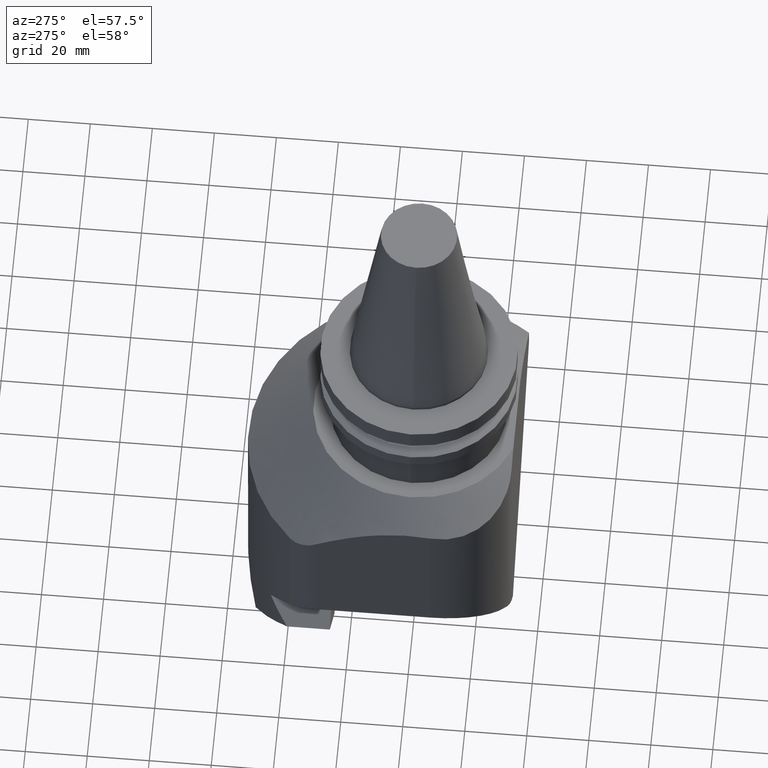
[diagram: clean part render]
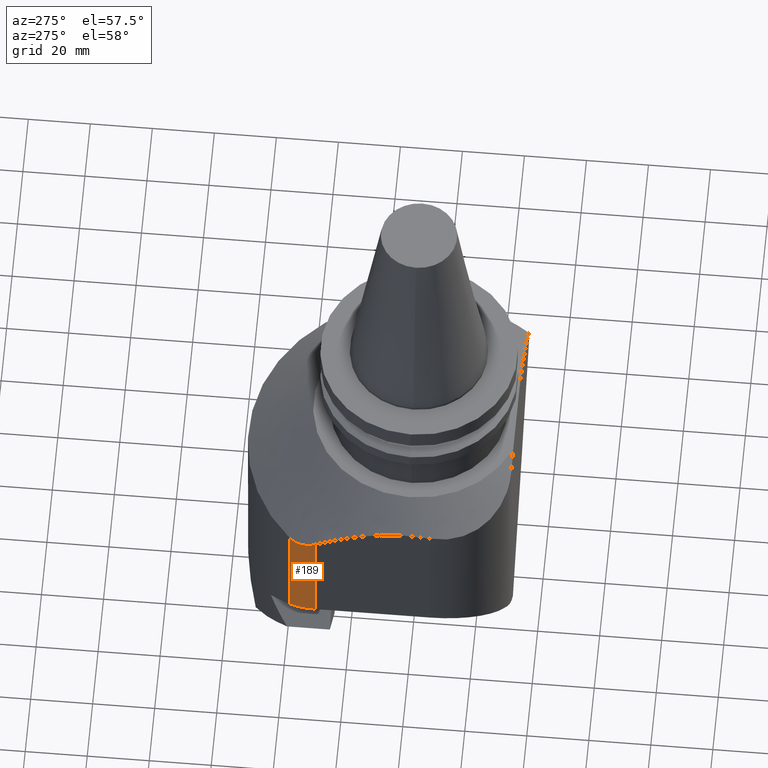
[diagram: same view with one face highlighted and labeled with its STEP entity id]
A machine part, auxiliary view. The second image highlights one B-rep face of the part: STEP entity #189.
In plain terms, the highlighted cylindrical surface (partial cylindrical patch) has radius 12 mm, axis along (-0, 0, 1).
Its self-contained STEP definition (entity closure, byte-faithful):
#189=ADVANCED_FACE('Unnamed[1]',(#447),#448,.T.);
#222=EDGE_CURVE('Unnamed[1]',#493,#344,#494,.T.);
#276=EDGE_CURVE('Unnamed[1]',#464,#376,#565,.T.);
#297=EDGE_CURVE('Unnamed[1]',#493,#464,#592,.T.);
#299=EDGE_CURVE('Unnamed[1]',#344,#376,#594,.T.);
#344=VERTEX_POINT('',#644);
#376=VERTEX_POINT('',#713);
#447=FACE_OUTER_BOUND('',#832,.T.);
#448=CYLINDRICAL_SURFACE('',#833,12.0);
#464=VERTEX_POINT('',#864);
#493=VERTEX_POINT('',#902);
#494=LINE('',#903,#904);
#565=LINE('',#1012,#1013);
#592=ELLIPSE('',#1052,16.9705627484773,12.0);
#594=B_SPLINE_CURVE_WITH_KNOTS('',3,(#1055,#1056,#1057,#1058,#1059,#1060,#1061,#1062,#1063,#1064,#1065,#1066,#1067,#1068,#1069,#1070,#1071,#1072),.UNSPECIFIED.,.F.,.F.,(4,2,2,2,2,2,2,2,4),(36.2557716590916,37.5446252428977,38.8334788267038,40.12233241051,41.4111859943161,42.7000395781222,44.2429399208327,45.7858402635432,47.3287406062536),.UNSPECIFIED.);
#644=CARTESIAN_POINT('',(-39.6511627906968,38.1154206240154,-56.0000000000001));
#713=CARTESIAN_POINT('',(-42.9999999999992,29.7993288515031,-53.3163454381134));
#832=EDGE_LOOP('',(#1216,#1217,#1218,#1219));
#833=AXIS2_PLACEMENT_3D('',#1220,#1221,#1222);
#864=CARTESIAN_POINT('',(-42.9999999999993,29.799328851503,-91.8578643762687));
#902=CARTESIAN_POINT('',(-39.651162790697,38.1154206240154,-95.2067015855711));
#903=CARTESIAN_POINT('',(-39.6511627906969,38.1154206240154,-276.895414657619));
#904=VECTOR('',#1275,1.0);
#1012=CARTESIAN_POINT('',(-42.9999999999992,29.799328851503,-276.895414657619));
#1013=VECTOR('',#1361,1.0);
#1052=AXIS2_PLACEMENT_3D('',#1391,#1392,#1393);
#1055=CARTESIAN_POINT('',(-38.6772671526272,39.022103329239,-55.9422928410586));
#1056=CARTESIAN_POINT('',(-39.0263570395986,38.7315122138396,-55.981649885972));
#1057=CARTESIAN_POINT('',(-39.3534343272449,38.4251451286511,-56.0000000000001));
#1058=CARTESIAN_POINT('',(-39.9488912541485,37.8056961193799,-56.0000000000001));
#1059=CARTESIAN_POINT('',(-40.2421062007639,37.4667782265766,-55.9816498859716));
#1060=CARTESIAN_POINT('',(-40.7952706044588,36.7461972633089,-55.9029357961448));
#1061=CARTESIAN_POINT('',(-41.0552206566583,36.364534747911,-55.8425709212606));
#1062=CARTESIAN_POINT('',(-41.5259916391148,35.5797173286457,-55.6820018060092));
#1063=CARTESIAN_POINT('',(-41.7370472659761,35.1762284600342,-55.5817398436664));
#1064=CARTESIAN_POINT('',(-42.1034021049853,34.3720408572206,-55.3502697574901));
#1065=CARTESIAN_POINT('',(-42.2587486622798,33.9713573270032,-55.2190837488597));
#1066=CARTESIAN_POINT('',(-42.5405522018784,33.1238529322261,-54.9136263698596));
#1067=CARTESIAN_POINT('',(-42.6696571086576,32.6401554698785,-54.7203428433214));
#1068=CARTESIAN_POINT('',(-42.8659014811064,31.6571703282053,-54.2865629527261));
#1069=CARTESIAN_POINT('',(-42.9330994531661,31.1578877851209,-54.0460814201962));
#1070=CARTESIAN_POINT('',(-43.0044193919994,30.1714320851678,-53.5311065562397));
#1071=CARTESIAN_POINT('',(-43.0086331019961,29.6839232987423,-53.2564551514201));
#1072=CARTESIAN_POINT('',(-42.9857557853309,29.2148134501781,-52.9738446275038));
#1216=ORIENTED_EDGE('',*,*,#297,.T.);
#1217=ORIENTED_EDGE('',*,*,#276,.T.);
#1218=ORIENTED_EDGE('',*,*,#299,.F.);
#1219=ORIENTED_EDGE('',*,*,#222,.F.);
#1220=CARTESIAN_POINT('',(-30.9999999999991,29.799328851503,-276.895414657619));
#1221=DIRECTION('',(-1.22464679914735E-016,6.12323399573677E-017,1.0));
#1222=DIRECTION('',(3.06161699786838E-016,1.0,-6.12323399573677E-017));
#1275=DIRECTION('',(-1.22464679914735E-016,6.12323399573677E-017,1.0));
#1361=DIRECTION('',(-1.22464679914735E-016,6.12323399573677E-017,1.0));
#1391=CARTESIAN_POINT('',(-30.9999999999991,29.799328851503,-103.857864376269));
#1392=DIRECTION('',(0.707106781186555,-8.65956056235511E-017,0.70710678118654));
#1393=DIRECTION('',(-0.70710678118654,2.59786816870646E-016,0.707106781186555));